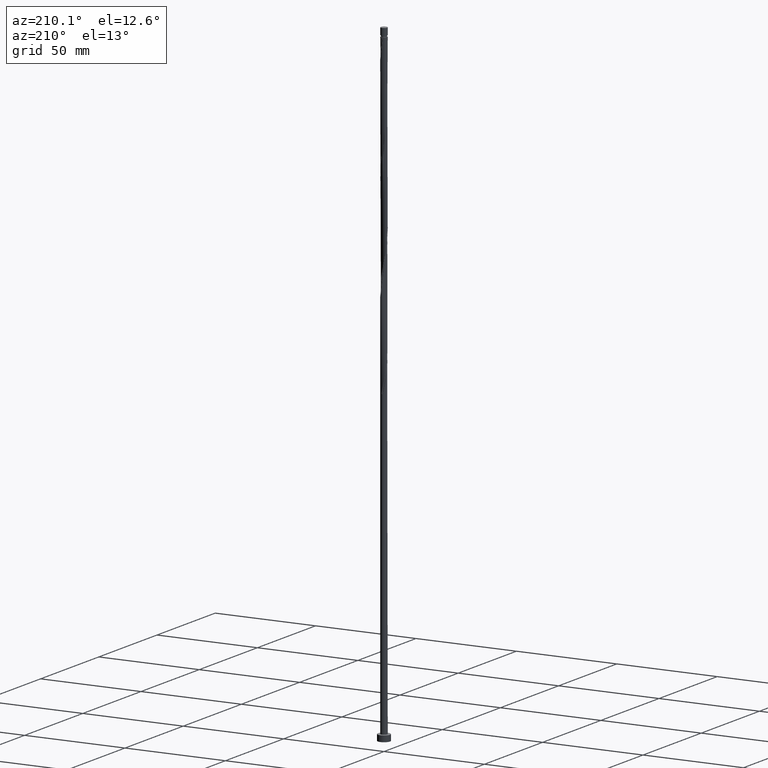
[diagram: clean part render]
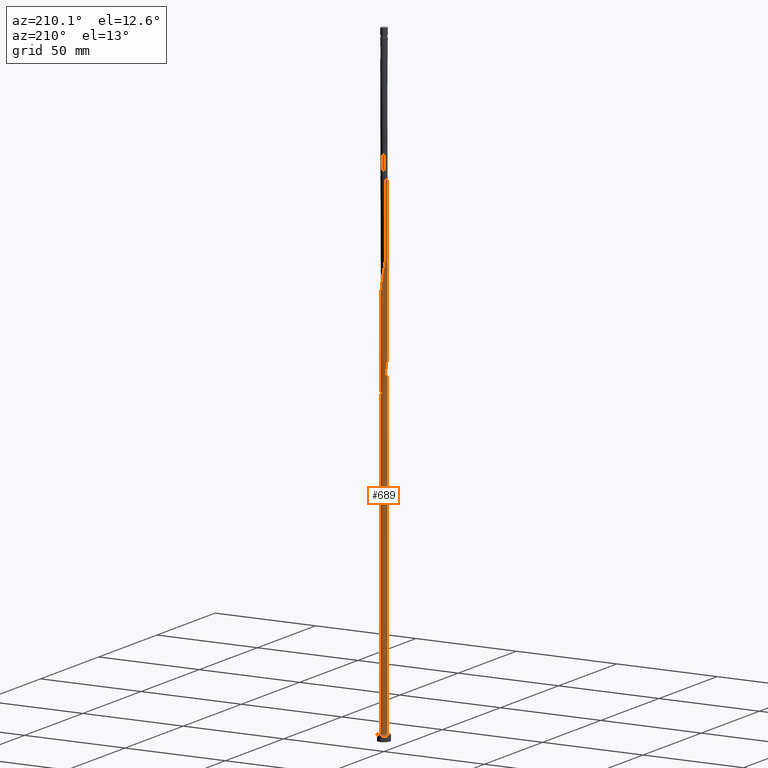
[diagram: same view with one face highlighted and labeled with its STEP entity id]
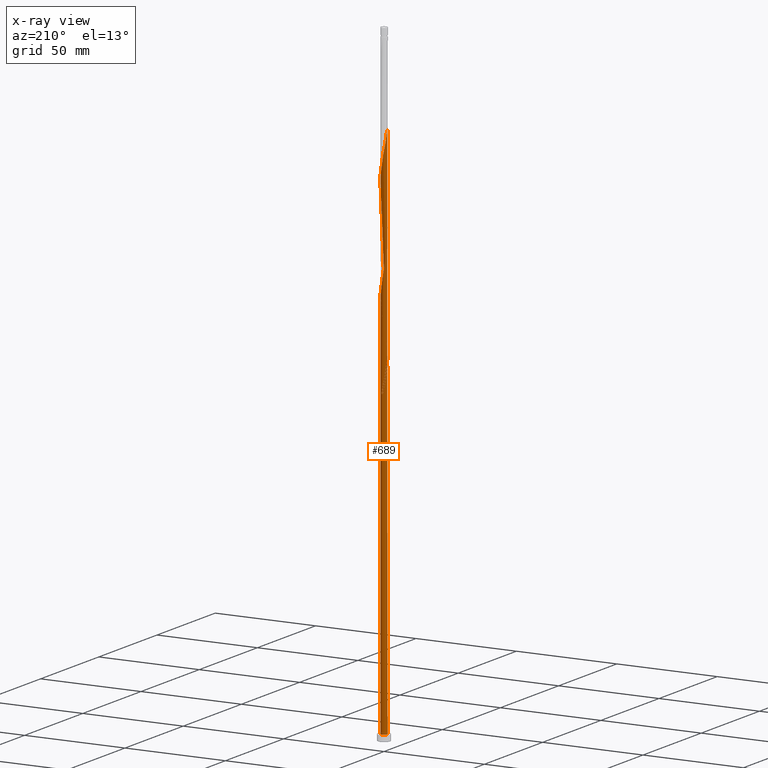
[diagram: x-ray of the same camera — body ghosted, the highlighted face saturated]
A machine part, auxiliary view. The second image highlights one B-rep face of the part: STEP entity #689.
The next image is the same camera in x-ray: the body ghosted, the highlighted face saturated — about 0% of this face is hidden behind the body in this view.
In plain terms, the highlighted cylindrical surface (bore or boss wall) has radius 1.6 mm, axis along (-0, -0, -1).
Its self-contained STEP definition (entity closure, byte-faithful):
#2 = AXIS2_PLACEMENT_3D ( 'NONE', #773, #1340, #92 ) ;
#12 = CARTESIAN_POINT ( 'NONE',  ( -0.4950671496374954850, 1.532125388895208218, 206.8356514521028657 ) ) ;
#21 = CARTESIAN_POINT ( 'NONE',  ( 0.6593259523492639440, -1.457837195491576532, 181.5231514521028657 ) ) ;
#30 = CARTESIAN_POINT ( 'NONE',  ( -1.274572346603212836, -0.9671945684681999555, 170.2731514521028657 ) ) ;
#41 = CARTESIAN_POINT ( 'NONE',  ( 1.424428410914205134, -0.7287000083576508080, 187.1481514521028657 ) ) ;
#50 = CARTESIAN_POINT ( 'NONE',  ( 0.4950671496374952074, -1.532125388895208218, 180.5856514521028657 ) ) ;
#68 = VERTEX_POINT ( 'NONE', #1398 ) ;
#71 = CARTESIAN_POINT ( 'NONE',  ( -0.3934648374044629193, 1.550866023138775418, 157.1481514521028657 ) ) ;
#74 = CARTESIAN_POINT ( 'NONE',  ( 1.532125388895208218, 0.4950671496374951519, 246.2106514521028657 ) ) ;
#84 = CARTESIAN_POINT ( 'NONE',  ( -0.5682054716227037394, -1.506533183161097078, 227.4606514521028657 ) ) ;
#92 = DIRECTION ( 'NONE',  ( -1.000000000000000000, 0.000000000000000000, 0.000000000000000000 ) ) ;
#100 = CARTESIAN_POINT ( 'NONE',  ( -1.274572346603212836, -0.9671945684681999555, 222.7731514521028942 ) ) ;
#118 = DIRECTION ( 'NONE',  ( 0.000000000000000000, -0.000000000000000000, -1.000000000000000000 ) ) ;
#142 = VERTEX_POINT ( 'NONE', #984 ) ;
#144 = CARTESIAN_POINT ( 'NONE',  ( 1.165595691118481492, 1.110804381875367230, 197.4606514521028373 ) ) ;
#146 = CIRCLE ( 'NONE', #1151, 1.600000000000000089 ) ;
#154 = CARTESIAN_POINT ( 'NONE',  ( -0.8891945450925975436, -1.342323638667313412, 173.0856514521028942 ) ) ;
#164 = CARTESIAN_POINT ( 'NONE',  ( -1.532125388895208218, -0.4950671496374952629, 219.9606514521028657 ) ) ;
#169 = VERTEX_POINT ( 'NONE', #855 ) ;
#171 = CARTESIAN_POINT ( 'NONE',  ( -1.599536737110626827, 0.03849969653773879091, 217.1481514521029226 ) ) ;
#177 = CARTESIAN_POINT ( 'NONE',  ( 0.8235847550610325696, -1.383549002087944180, 182.4606514521029226 ) ) ;
#193 =( BOUNDED_CURVE ( )  B_SPLINE_CURVE ( 2, ( #702, #1674, #1267, #1278, #718, #854, #30, #1422, #577, #154, #286, #839, #1119, #1568, #1102, #726, #863, #50, #21, #177, #846, #421, #1533, #961, #41, #586, #828, #454, #1258, #1394, #1287, #319, #1430, #557, #1111, #144, #998, #1694, #695, #991, #1249, #446, #1710, #1407, #1561, #12, #437, #1127, #1701, #983, #1686, #1553, #429, #972, #311, #1414, #171, #1542, #1135, #164, #295, #1634, #100, #1716, #652, #627, #1616, #84, #386, #1184, #246, #788, #1055, #1200, #757, #1746, #1330, #637, #1772, #1468, #510, #1461, #1045, #925, #504, #238, #916, #74, #359, #1065, #898, #1488, #1497, #367, #905, #220, #1756, #212, #1359, #596, #1037, #1623, #1478, #488, #780, #1143, #377, #1350, #496, #461, #1007, #1577, #764, #351, #890 ),
 .UNSPECIFIED., .F., .T. ) 
 B_SPLINE_CURVE_WITH_KNOTS ( ( 3, 2, 2, 2, 2, 2, 2, 2, 2, 2, 2, 2, 2, 2, 2, 2, 2, 2, 2, 2, 2, 2, 2, 2, 2, 2, 2, 2, 2, 2, 2, 2, 2, 2, 2, 2, 2, 2, 2, 2, 2, 2, 2, 2, 2, 2, 2, 2, 2, 2, 2, 2, 2, 2, 2, 2, 2, 3 ),
 ( 0.05453034012992213908, 0.06250000000000000000, 0.07142857142857139685, 0.08035714285714290472, 0.08928571428571430157, 0.09821428571428569843, 0.1071428571428570953, 0.1160714285714286031, 0.1250000000000000000, 0.1339285714285713969, 0.1428571428571429047, 0.1517857142857143016, 0.1607142857142856984, 0.1696428571428570953, 0.1785714285714286031, 0.1875000000000000000, 0.1964285714285713969, 0.2053571428571429047, 0.2142857142857143016, 0.2232142857142856984, 0.2321428571428570953, 0.2410714285714286031, 0.2500000000000000000, 0.2589285714285713969, 0.2678571428571429047, 0.2767857142857143016, 0.2857142857142856984, 0.2946428571428570953, 0.3035714285714286031, 0.3125000000000000000, 0.3214285714285713969, 0.3303571428571429047, 0.3392857142857143016, 0.3482142857142856984, 0.3571428571428570953, 0.3660714285714286031, 0.3750000000000000000, 0.3839285714285713969, 0.3928571428571429047, 0.4017857142857143016, 0.4107142857142856984, 0.4196428571428570953, 0.4285714285714286031, 0.4375000000000000000, 0.4464285714285713969, 0.4553571428571429047, 0.4642857142857143016, 0.4732142857142856984, 0.4821428571428570953, 0.4910714285714286031, 0.5000000000000000000, 0.5089285714285713969, 0.5178571428571427937, 0.5267857142857143016, 0.5357142857142856984, 0.5446428571428572063, 0.5535714285714286031, 0.5545303401299224166 ),
 .UNSPECIFIED. ) 
 CURVE ( )  GEOMETRIC_REPRESENTATION_ITEM ( )  RATIONAL_B_SPLINE_CURVE ( ( 0.9079949616362513742, 0.9039886423361144230, 0.9090909090909813361, 0.9033747362666559866, 0.9090909090909813361, 0.9033747362666559866, 0.9090909090909813361, 0.9033747362666559866, 0.9090909090909813361, 0.9033747362666559866, 0.9090909090909813361, 0.9033747362666559866, 0.9090909090909813361, 0.9033747362666559866, 0.9090909090909813361, 0.9033747362666559866, 0.9090909090909813361, 0.9033747362666559866, 0.9090909090909813361, 0.9033747362666559866, 0.9090909090909813361, 0.9033747362666559866, 0.9090909090909813361, 0.9033747362666559866, 0.9090909090909813361, 0.9033747362666559866, 0.9090909090909813361, 0.9033747362666559866, 0.9090909090909813361, 0.9033747362666559866, 0.9090909090909813361, 0.9033747362666559866, 0.9090909090909813361, 0.9033747362666559866, 0.9090909090909813361, 0.9033747362666559866, 0.9090909090909813361, 0.9033747362666559866, 0.9090909090909813361, 0.9033747362666559866, 0.9090909090909813361, 0.9033747362666559866, 0.9090909090909813361, 0.9033747362666559866, 0.9090909090909813361, 0.9033747362666559866, 0.9090909090909813361, 0.9033747362666559866, 0.9090909090909813361, 0.9033747362666559866, 0.9090909090909813361, 0.9033747362666559866, 0.9090909090909813361, 0.9033747362666559866, 0.9090909090909813361, 0.9033747362666559866, 0.9090909090909813361, 0.9033747362666559866, 0.9090909090909813361, 0.9033747362666559866, 0.9090909090909813361, 0.9033747362666559866, 0.9090909090909813361, 0.9033747362666559866, 0.9090909090909813361, 0.9033747362666559866, 0.9090909090909813361, 0.9033747362666559866, 0.9090909090909813361, 0.9033747362666559866, 0.9090909090909813361, 0.9033747362666559866, 0.9090909090909813361, 0.9033747362666559866, 0.9090909090909813361, 0.9033747362666559866, 0.9090909090909813361, 0.9033747362666559866, 0.9090909090909813361, 0.9033747362666559866, 0.9090909090909813361, 0.9033747362666559866, 0.9090909090909813361, 0.9033747362666559866, 0.9090909090909813361, 0.9033747362666559866, 0.9090909090909813361, 0.9033747362666559866, 0.9090909090909813361, 0.9033747362666559866, 0.9090909090909813361, 0.9033747362666559866, 0.9090909090909813361, 0.9033747362666559866, 0.9090909090909813361, 0.9033747362666559866, 0.9090909090909813361, 0.9033747362666559866, 0.9090909090909813361, 0.9033747362666559866, 0.9090909090909813361, 0.9033747362666559866, 0.9090909090909813361, 0.9033747362666559866, 0.9090909090909813361, 0.9033747362666559866, 0.9090909090909813361, 0.9033747362666559866, 0.9090909090909813361, 0.9033747362666559866, 0.9090909090909813361, 0.9033747362666559866, 0.9090909090909813361, 0.9084770030215227887, 0.9079949616362510412 ) ) 
 REPRESENTATION_ITEM ( '' )  );
#212 = CARTESIAN_POINT ( 'NONE',  ( 0.2187242031862245695, 1.595198863116457533, 255.5856514521029226 ) ) ;
#217 = CARTESIAN_POINT ( 'NONE',  ( -0.2187242031862235980, 1.595198863116455312, 156.2106514521028942 ) ) ;
#220 = CARTESIAN_POINT ( 'NONE',  ( 0.5682054716227041835, 1.506533183161097078, 253.7106514521028657 ) ) ;
#224 = CARTESIAN_POINT ( 'NONE',  ( -0.5682054716227021851, 1.506533183161094858, 158.0856514521028942 ) ) ;
#231 = VECTOR ( 'NONE', #1465, 1000.000000000000000 ) ;
#238 = CARTESIAN_POINT ( 'NONE',  ( 1.603874611104796122, 0.1417248101107463354, 244.3356514521028373 ) ) ;
#246 = CARTESIAN_POINT ( 'NONE',  ( -0.03849969653773888806, -1.599536737110626827, 230.2731514521028657 ) ) ;
#262 = CARTESIAN_POINT ( 'NONE',  ( -1.600000000000000089, 0.000000000000000000, 315.0000000000000000 ) ) ;
#265 = CARTESIAN_POINT ( 'NONE',  ( -1.550866023138777416, 0.3934648374044639740, 162.7731514521028657 ) ) ;
#275 = DIRECTION ( 'NONE',  ( -0.000000000000000000, -0.000000000000000000, -1.000000000000000000 ) ) ;
#277 = CARTESIAN_POINT ( 'NONE',  ( -1.599536737110626827, 0.03849969653773879091, 164.6481514521028657 ) ) ;
#286 = CARTESIAN_POINT ( 'NONE',  ( -0.7287000083576505860, -1.424428410914205134, 174.0231514521028657 ) ) ;
#295 = CARTESIAN_POINT ( 'NONE',  ( -1.457837195491576532, -0.6593259523492639440, 220.8981514521028657 ) ) ;
#311 = CARTESIAN_POINT ( 'NONE',  ( -1.550866023138777416, 0.3934648374044639740, 215.2731514521028657 ) ) ;
#313 =( BOUNDED_CURVE ( )  B_SPLINE_CURVE ( 2, ( #1449, #464, #1011, #347, #1580, #329, #1299, #879, #1612, #1188, #1042, #224, #71, #217, #1173, #1311, #1441 ),
 .UNSPECIFIED., .F., .T. ) 
 B_SPLINE_CURVE_WITH_KNOTS ( ( 3, 2, 2, 2, 2, 2, 2, 2, 3 ),
 ( 0.9295303401299220836, 0.9375000000000000000, 0.9464285714285713969, 0.9553571428571429047, 0.9642857142857143016, 0.9732142857142856984, 0.9821428571428570953, 0.9910714285714286031, 1.000000000000000000 ),
 .UNSPECIFIED. ) 
 CURVE ( )  GEOMETRIC_REPRESENTATION_ITEM ( )  RATIONAL_B_SPLINE_CURVE ( ( 0.9079949616362451570, 0.9039886423361080947, 0.9090909090909750079, 0.9033747362666497693, 0.9090909090909750079, 0.9033747362666497693, 0.9090909090909750079, 0.9033747362666497693, 0.9090909090909750079, 0.9033747362666497693, 0.9090909090909750079, 0.9033747362666497693, 0.9090909090909750079, 0.9033747362666497693, 0.9090909090909750079, 0.9033747362666497693, 0.9090909090909750079 ) ) 
 REPRESENTATION_ITEM ( '' )  );
#318 = EDGE_CURVE ( 'NONE', #459, #750, #1512, .T. ) ;
#319 = CARTESIAN_POINT ( 'NONE',  ( 1.532125388895208218, 0.4950671496374951519, 193.7106514521028373 ) ) ;
#322 = CIRCLE ( 'NONE', #1008, 1.600000000000000089 ) ;
#327 = ORIENTED_EDGE ( 'NONE', *, *, #1138, .T. ) ;
#329 = CARTESIAN_POINT ( 'NONE',  ( -1.383549002087941293, 0.8235847550610319034, 163.7106514521028657 ) ) ;
#347 = CARTESIAN_POINT ( 'NONE',  ( -1.532125388895205997, 0.4950671496374948188, 165.5856514521028657 ) ) ;
#351 = CARTESIAN_POINT ( 'NONE',  ( -1.600000000000002531, 0.01925263546621620164, 269.7482716859717584 ) ) ;
#352 = ORIENTED_EDGE ( 'NONE', *, *, #1336, .F. ) ;
#359 = CARTESIAN_POINT ( 'NONE',  ( 1.457837195491576532, 0.6593259523492639440, 247.1481514521028373 ) ) ;
#367 = CARTESIAN_POINT ( 'NONE',  ( 0.8891945450925979877, 1.342323638667313190, 251.8356514521028942 ) ) ;
#377 = CARTESIAN_POINT ( 'NONE',  ( -1.226564010271340210, 1.027395118105539407, 264.0231514521029226 ) ) ;
#384 = CARTESIAN_POINT ( 'NONE',  ( -0.4950671496374954850, 1.532125388895208218, 154.3356514521028373 ) ) ;
#386 = CARTESIAN_POINT ( 'NONE',  ( -0.3934648374044641406, -1.550866023138777194, 228.3981514521028942 ) ) ;
#392 = CARTESIAN_POINT ( 'NONE',  ( -0.9671945684682000666, 1.274572346603212836, 157.1481514521028942 ) ) ;
#421 = CARTESIAN_POINT ( 'NONE',  ( 1.110804381875367230, -1.165595691118481492, 184.3356514521029226 ) ) ;
#429 = CARTESIAN_POINT ( 'NONE',  ( -1.424428410914205356, 0.7287000083576504750, 213.3981514521028373 ) ) ;
#437 = CARTESIAN_POINT ( 'NONE',  ( -0.6593259523492642771, 1.457837195491576532, 207.7731514521028657 ) ) ;
#446 = CARTESIAN_POINT ( 'NONE',  ( 0.2187242031862245695, 1.595198863116457533, 203.0856514521028942 ) ) ;
#454 = CARTESIAN_POINT ( 'NONE',  ( 1.595198863116457533, -0.2187242031862244585, 189.9606514521029510 ) ) ;
#459 = VERTEX_POINT ( 'NONE', #1594 ) ;
#461 = CARTESIAN_POINT ( 'NONE',  ( -1.506533183161097078, 0.5682054716227036284, 266.8356514521028657 ) ) ;
#464 = CARTESIAN_POINT ( 'NONE',  ( -1.599999999999999645, 0.1608060504414763059, 167.3593974510453108 ) ) ;
#488 = CARTESIAN_POINT ( 'NONE',  ( -0.8235847550610331247, 1.383549002087944180, 261.2106514521029226 ) ) ;
#496 = CARTESIAN_POINT ( 'NONE',  ( -1.424428410914205356, 0.7287000083576504750, 265.8981514521029226 ) ) ;
#504 = CARTESIAN_POINT ( 'NONE',  ( 1.599536737110626827, -0.03849969653773905459, 243.3981514521028373 ) ) ;
#510 = CARTESIAN_POINT ( 'NONE',  ( 1.424428410914205134, -0.7287000083576508080, 239.6481514521029226 ) ) ;
#520 = CARTESIAN_POINT ( 'NONE',  ( -0.8235847550610331247, 1.383549002087944180, 156.2106514521028373 ) ) ;
#538 = DIRECTION ( 'NONE',  ( 1.000000000000000000, 0.000000000000000000, 0.000000000000000000 ) ) ;
#542 = AXIS2_PLACEMENT_3D ( 'NONE', #922, #118, #1493 ) ;
#557 = CARTESIAN_POINT ( 'NONE',  ( 1.383549002087944180, 0.8235847550610325696, 195.5856514521028657 ) ) ;
#577 = CARTESIAN_POINT ( 'NONE',  ( -1.027395118105539629, -1.226564010271340210, 172.1481514521029226 ) ) ;
#586 = CARTESIAN_POINT ( 'NONE',  ( 1.506533183161097078, -0.5682054716227037394, 188.0856514521028657 ) ) ;
#596 = CARTESIAN_POINT ( 'NONE',  ( -0.1417248101107462521, 1.603874611104796122, 257.4606514521028657 ) ) ;
#608 = CARTESIAN_POINT ( 'NONE',  ( 0.000000000000000000, 0.000000000000000000, 3.000000000000000000 ) ) ;
#627 = CARTESIAN_POINT ( 'NONE',  ( -0.8891945450925975436, -1.342323638667313412, 225.5856514521028942 ) ) ;
#637 = CARTESIAN_POINT ( 'NONE',  ( 1.110804381875367230, -1.165595691118481492, 236.8356514521028657 ) ) ;
#652 = CARTESIAN_POINT ( 'NONE',  ( -1.027395118105539629, -1.226564010271340210, 224.6481514521028942 ) ) ;
#655 = EDGE_CURVE ( 'NONE', #1152, #459, #193, .T. ) ;
#659 = CARTESIAN_POINT ( 'NONE',  ( 0.000000000000000000, 0.000000000000000000, 3.000000000000000000 ) ) ;
#669 = CARTESIAN_POINT ( 'NONE',  ( -1.600000000000002531, -1.880647463712196369E-15, 164.8486343741967914 ) ) ;
#689 = ADVANCED_FACE ( 'NONE', ( #1176 ), #1605, .T. ) ;
#695 = CARTESIAN_POINT ( 'NONE',  ( 0.7287000083576508080, 1.424428410914205134, 200.2731514521028942 ) ) ;
#702 = CARTESIAN_POINT ( 'NONE',  ( -1.600000000000002531, -1.880647463712196369E-15, 164.8486343741968199 ) ) ;
#718 = CARTESIAN_POINT ( 'NONE',  ( -1.457837195491576532, -0.6593259523492639440, 168.3981514521028942 ) ) ;
#726 = CARTESIAN_POINT ( 'NONE',  ( 0.1417248101107464464, -1.603874611104796122, 178.7106514521028942 ) ) ;
#750 = VERTEX_POINT ( 'NONE', #1689 ) ;
#757 = CARTESIAN_POINT ( 'NONE',  ( 0.6593259523492639440, -1.457837195491576532, 234.0231514521028657 ) ) ;
#764 = CARTESIAN_POINT ( 'NONE',  ( -1.599536737110626827, 0.03849969653773879091, 269.6481514521028657 ) ) ;
#773 = CARTESIAN_POINT ( 'NONE',  ( 0.000000000000000000, 0.000000000000000000, 315.0000000000000000 ) ) ;
#780 = CARTESIAN_POINT ( 'NONE',  ( -0.9671945684682000666, 1.274572346603212836, 262.1481514521029226 ) ) ;
#788 = CARTESIAN_POINT ( 'NONE',  ( 0.1417248101107464464, -1.603874611104796122, 231.2106514521028373 ) ) ;
#828 = CARTESIAN_POINT ( 'NONE',  ( 1.550866023138777194, -0.3934648374044641961, 189.0231514521028373 ) ) ;
#839 = CARTESIAN_POINT ( 'NONE',  ( -0.5682054716227037394, -1.506533183161097078, 174.9606514521029226 ) ) ;
#846 = CARTESIAN_POINT ( 'NONE',  ( 0.9671945684681999555, -1.274572346603212836, 183.3981514521028657 ) ) ;
#854 = CARTESIAN_POINT ( 'NONE',  ( -1.383549002087944180, -0.8235847550610327916, 169.3356514521028942 ) ) ;
#855 = CARTESIAN_POINT ( 'NONE',  ( 1.600000000000000089, 0.000000000000000000, 3.000000000000000000 ) ) ;
#863 = CARTESIAN_POINT ( 'NONE',  ( 0.3183959798741208824, -1.568000000000002059, 179.6481514521028089 ) ) ;
#879 = CARTESIAN_POINT ( 'NONE',  ( -1.165595691118479049, 1.110804381875366120, 161.8356514521028942 ) ) ;
#890 = CARTESIAN_POINT ( 'NONE',  ( -1.600000000000002753, 5.858366107198707680E-16, 269.8486343741968199 ) ) ;
#895 = LINE ( 'NONE', #1589, #231 ) ;
#898 = CARTESIAN_POINT ( 'NONE',  ( 1.274572346603213058, 0.9671945684681999555, 249.0231514521028657 ) ) ;
#905 = CARTESIAN_POINT ( 'NONE',  ( 0.7287000083576508080, 1.424428410914205134, 252.7731514521029510 ) ) ;
#912 = CIRCLE ( 'NONE', #542, 1.600000000000000089 ) ;
#916 = CARTESIAN_POINT ( 'NONE',  ( 1.568000000000002059, 0.3183959798741206604, 245.2731514521028657 ) ) ;
#922 = CARTESIAN_POINT ( 'NONE',  ( 0.000000000000000000, 0.000000000000000000, 153.3981514521028942 ) ) ;
#925 = CARTESIAN_POINT ( 'NONE',  ( 1.595198863116457533, -0.2187242031862244585, 242.4606514521028657 ) ) ;
#933 = CARTESIAN_POINT ( 'NONE',  ( -1.342323638667313412, 0.8891945450925975436, 159.9606514521028657 ) ) ;
#954 = CARTESIAN_POINT ( 'NONE',  ( 0.3183959798741211045, 1.567999999999999838, 153.3981514521028657 ) ) ;
#955 = ORIENTED_EDGE ( 'NONE', *, *, #1588, .F. ) ;
#961 = CARTESIAN_POINT ( 'NONE',  ( 1.342323638667313412, -0.8891945450925977656, 186.2106514521028657 ) ) ;
#972 = CARTESIAN_POINT ( 'NONE',  ( -1.506533183161097078, 0.5682054716227036284, 214.3356514521028942 ) ) ;
#983 = CARTESIAN_POINT ( 'NONE',  ( -1.110804381875367453, 1.165595691118481492, 210.5856514521028657 ) ) ;
#984 = CARTESIAN_POINT ( 'NONE',  ( -1.600000000000000089, 0.000000000000000000, 3.000000000000000000 ) ) ;
#991 = CARTESIAN_POINT ( 'NONE',  ( 0.5682054716227041835, 1.506533183161097078, 201.2106514521028657 ) ) ;
#998 = CARTESIAN_POINT ( 'NONE',  ( 1.027395118105539629, 1.226564010271339988, 198.3981514521028089 ) ) ;
#1007 = CARTESIAN_POINT ( 'NONE',  ( -1.550866023138777416, 0.3934648374044639740, 267.7731514521029794 ) ) ;
#1008 = AXIS2_PLACEMENT_3D ( 'NONE', #608, #1155, #1458 ) ;
#1011 = CARTESIAN_POINT ( 'NONE',  ( -1.567999999999999616, 0.3183959798741208269, 166.5231514521028657 ) ) ;
#1015 = EDGE_LOOP ( 'NONE', ( #1117, #1683, #1757, #327, #1652, #955, #352, #1141, #1085 ) ) ;
#1037 = CARTESIAN_POINT ( 'NONE',  ( -0.3183959798741206604, 1.568000000000002059, 258.3981514521028657 ) ) ;
#1042 = CARTESIAN_POINT ( 'NONE',  ( -0.7287000083576490317, 1.424428410914202914, 159.0231514521029226 ) ) ;
#1045 = CARTESIAN_POINT ( 'NONE',  ( 1.550866023138777194, -0.3934648374044641961, 241.5231514521028657 ) ) ;
#1055 = CARTESIAN_POINT ( 'NONE',  ( 0.3183959798741208824, -1.568000000000002059, 232.1481514521028657 ) ) ;
#1065 = CARTESIAN_POINT ( 'NONE',  ( 1.383549002087944180, 0.8235847550610325696, 248.0856514521028942 ) ) ;
#1084 = CARTESIAN_POINT ( 'NONE',  ( -0.6593259523492642771, 1.457837195491576532, 155.2731514521028942 ) ) ;
#1085 = ORIENTED_EDGE ( 'NONE', *, *, #1401, .F. ) ;
#1087 = EDGE_CURVE ( 'NONE', #68, #1241, #912, .T. ) ;
#1095 = CARTESIAN_POINT ( 'NONE',  ( -1.110804381875367453, 1.165595691118481492, 158.0856514521028373 ) ) ;
#1102 = CARTESIAN_POINT ( 'NONE',  ( -0.03849969653773888806, -1.599536737110626827, 177.7731514521028657 ) ) ;
#1104 = CARTESIAN_POINT ( 'NONE',  ( -1.424428410914205356, 0.7287000083576504750, 160.8981514521028373 ) ) ;
#1111 = CARTESIAN_POINT ( 'NONE',  ( 1.274572346603213058, 0.9671945684681999555, 196.5231514521028942 ) ) ;
#1117 = ORIENTED_EDGE ( 'NONE', *, *, #318, .F. ) ;
#1119 = CARTESIAN_POINT ( 'NONE',  ( -0.3934648374044641406, -1.550866023138777194, 175.8981514521028657 ) ) ;
#1127 = CARTESIAN_POINT ( 'NONE',  ( -0.8235847550610331247, 1.383549002087944180, 208.7106514521028657 ) ) ;
#1135 = CARTESIAN_POINT ( 'NONE',  ( -1.568000000000002059, -0.3183959798741208824, 219.0231514521029510 ) ) ;
#1138 = EDGE_CURVE ( 'NONE', #142, #169, #146, .T. ) ;
#1141 = ORIENTED_EDGE ( 'NONE', *, *, #1087, .T. ) ;
#1143 = CARTESIAN_POINT ( 'NONE',  ( -1.110804381875367453, 1.165595691118481492, 263.0856514521029226 ) ) ;
#1151 = AXIS2_PLACEMENT_3D ( 'NONE', #659, #1347, #538 ) ;
#1152 = VERTEX_POINT ( 'NONE', #669 ) ;
#1155 = DIRECTION ( 'NONE',  ( 0.000000000000000000, 0.000000000000000000, 1.000000000000000000 ) ) ;
#1172 =( BOUNDED_CURVE ( )  B_SPLINE_CURVE ( 2, ( #1368, #384, #1084, #520, #392, #1095, #1240, #933, #1104, #1516, #265, #1800, #277, #1525, #1664 ),
 .UNSPECIFIED., .F., .T. ) 
 B_SPLINE_CURVE_WITH_KNOTS ( ( 3, 2, 2, 2, 2, 2, 2, 3 ),
 ( 0.000000000000000000, 0.008928571428571396851, 0.01785714285714290472, 0.02678571428571430157, 0.03571428571428569843, 0.04464285714285709528, 0.05357142857142860315, 0.05453034012992214602 ),
 .UNSPECIFIED. ) 
 CURVE ( )  GEOMETRIC_REPRESENTATION_ITEM ( )  RATIONAL_B_SPLINE_CURVE ( ( 0.9090909090909813361, 0.9033747362666559866, 0.9090909090909813361, 0.9033747362666559866, 0.9090909090909813361, 0.9033747362666559866, 0.9090909090909813361, 0.9033747362666559866, 0.9090909090909813361, 0.9033747362666559866, 0.9090909090909813361, 0.9033747362666559866, 0.9090909090909813361, 0.9084770030215230108, 0.9079949616362513742 ) ) 
 REPRESENTATION_ITEM ( '' )  );
#1173 = CARTESIAN_POINT ( 'NONE',  ( -0.03849969653773843703, 1.599536737110624163, 155.2731514521029226 ) ) ;
#1176 = FACE_OUTER_BOUND ( 'NONE', #1015, .T. ) ;
#1184 = CARTESIAN_POINT ( 'NONE',  ( -0.2187242031862242919, -1.595198863116457755, 229.3356514521028373 ) ) ;
#1188 = CARTESIAN_POINT ( 'NONE',  ( -0.8891945450925957672, 1.342323638667311636, 159.9606514521028373 ) ) ;
#1200 = CARTESIAN_POINT ( 'NONE',  ( 0.4950671496374952074, -1.532125388895208218, 233.0856514521028942 ) ) ;
#1240 = CARTESIAN_POINT ( 'NONE',  ( -1.226564010271340210, 1.027395118105539407, 159.0231514521028657 ) ) ;
#1241 = VERTEX_POINT ( 'NONE', #954 ) ;
#1249 = CARTESIAN_POINT ( 'NONE',  ( 0.3934648374044642516, 1.550866023138777194, 202.1481514521028657 ) ) ;
#1258 = CARTESIAN_POINT ( 'NONE',  ( 1.599536737110626827, -0.03849969653773905459, 190.8981514521029226 ) ) ;
#1267 = CARTESIAN_POINT ( 'NONE',  ( -1.568000000000002059, -0.3183959798741208824, 166.5231514521028942 ) ) ;
#1278 = CARTESIAN_POINT ( 'NONE',  ( -1.532125388895208218, -0.4950671496374952629, 167.4606514521028657 ) ) ;
#1287 = CARTESIAN_POINT ( 'NONE',  ( 1.568000000000002059, 0.3183959798741206604, 192.7731514521028657 ) ) ;
#1299 = CARTESIAN_POINT ( 'NONE',  ( -1.274572346603210171, 0.9671945684681989563, 162.7731514521028942 ) ) ;
#1311 = CARTESIAN_POINT ( 'NONE',  ( 0.1417248101107466685, 1.603874611104793235, 154.3356514521028657 ) ) ;
#1330 = CARTESIAN_POINT ( 'NONE',  ( 0.9671945684681999555, -1.274572346603212836, 235.8981514521028942 ) ) ;
#1336 = EDGE_CURVE ( 'NONE', #68, #1152, #1172, .T. ) ;
#1340 = DIRECTION ( 'NONE',  ( -0.000000000000000000, -0.000000000000000000, -1.000000000000000000 ) ) ;
#1347 = DIRECTION ( 'NONE',  ( 0.000000000000000000, 0.000000000000000000, 1.000000000000000000 ) ) ;
#1350 = CARTESIAN_POINT ( 'NONE',  ( -1.342323638667313412, 0.8891945450925975436, 264.9606514521028657 ) ) ;
#1359 = CARTESIAN_POINT ( 'NONE',  ( 0.03849969653773915174, 1.599536737110626827, 256.5231514521028657 ) ) ;
#1368 = CARTESIAN_POINT ( 'NONE',  ( -0.3183959798741205494, 1.568000000000002059, 153.3981514521028373 ) ) ;
#1394 = CARTESIAN_POINT ( 'NONE',  ( 1.603874611104796122, 0.1417248101107463354, 191.8356514521028373 ) ) ;
#1398 = CARTESIAN_POINT ( 'NONE',  ( -0.3183959798741205494, 1.568000000000002059, 153.3981514521028657 ) ) ;
#1401 = EDGE_CURVE ( 'NONE', #750, #1241, #313, .T. ) ;
#1407 = CARTESIAN_POINT ( 'NONE',  ( -0.1417248101107462521, 1.603874611104796122, 204.9606514521028373 ) ) ;
#1414 = CARTESIAN_POINT ( 'NONE',  ( -1.595198863116457533, 0.2187242031862242087, 216.2106514521028942 ) ) ;
#1422 = CARTESIAN_POINT ( 'NONE',  ( -1.165595691118481492, -1.110804381875367230, 171.2106514521028373 ) ) ;
#1425 = VECTOR ( 'NONE', #275, 1000.000000000000000 ) ;
#1430 = CARTESIAN_POINT ( 'NONE',  ( 1.457837195491576532, 0.6593259523492639440, 194.6481514521028657 ) ) ;
#1441 = CARTESIAN_POINT ( 'NONE',  ( 0.3183959798741211600, 1.567999999999999616, 153.3981514521028373 ) ) ;
#1449 = CARTESIAN_POINT ( 'NONE',  ( -1.600000000000000089, -2.175431490762337487E-15, 168.1976685300089684 ) ) ;
#1458 = DIRECTION ( 'NONE',  ( 1.000000000000000000, 0.000000000000000000, 0.000000000000000000 ) ) ;
#1461 = CARTESIAN_POINT ( 'NONE',  ( 1.506533183161097078, -0.5682054716227037394, 240.5856514521028657 ) ) ;
#1465 = DIRECTION ( 'NONE',  ( -0.000000000000000000, -0.000000000000000000, -1.000000000000000000 ) ) ;
#1468 = CARTESIAN_POINT ( 'NONE',  ( 1.342323638667313412, -0.8891945450925977656, 238.7106514521028373 ) ) ;
#1478 = CARTESIAN_POINT ( 'NONE',  ( -0.6593259523492642771, 1.457837195491576532, 260.2731514521028657 ) ) ;
#1488 = CARTESIAN_POINT ( 'NONE',  ( 1.165595691118481492, 1.110804381875367230, 249.9606514521028657 ) ) ;
#1493 = DIRECTION ( 'NONE',  ( -1.000000000000000000, 0.000000000000000000, 0.000000000000000000 ) ) ;
#1497 = CARTESIAN_POINT ( 'NONE',  ( 1.027395118105539629, 1.226564010271339988, 250.8981514521028657 ) ) ;
#1512 = LINE ( 'NONE', #262, #1425 ) ;
#1516 = CARTESIAN_POINT ( 'NONE',  ( -1.506533183161097078, 0.5682054716227036284, 161.8356514521028657 ) ) ;
#1525 = CARTESIAN_POINT ( 'NONE',  ( -1.600000000000002531, 0.01925263546622176664, 164.7482716859717300 ) ) ;
#1533 = CARTESIAN_POINT ( 'NONE',  ( 1.226564010271339988, -1.027395118105539629, 185.2731514521029226 ) ) ;
#1542 = CARTESIAN_POINT ( 'NONE',  ( -1.603874611104796122, -0.1417248101107465574, 218.0856514521028942 ) ) ;
#1553 = CARTESIAN_POINT ( 'NONE',  ( -1.342323638667313412, 0.8891945450925975436, 212.4606514521028942 ) ) ;
#1555 = EDGE_CURVE ( 'NONE', #169, #142, #322, .T. ) ;
#1561 = CARTESIAN_POINT ( 'NONE',  ( -0.3183959798741206604, 1.568000000000002059, 205.8981514521029226 ) ) ;
#1568 = CARTESIAN_POINT ( 'NONE',  ( -0.2187242031862242919, -1.595198863116457755, 176.8356514521028942 ) ) ;
#1577 = CARTESIAN_POINT ( 'NONE',  ( -1.595198863116457533, 0.2187242031862242087, 268.7106514521028657 ) ) ;
#1580 = CARTESIAN_POINT ( 'NONE',  ( -1.457837195491573867, 0.6593259523492636109, 164.6481514521028657 ) ) ;
#1588 = EDGE_CURVE ( 'NONE', #1152, #142, #895, .T. ) ;
#1589 = CARTESIAN_POINT ( 'NONE',  ( -1.600000000000000089, 0.000000000000000000, 315.0000000000000000 ) ) ;
#1594 = CARTESIAN_POINT ( 'NONE',  ( -1.600000000000002531, 5.858366107198707680E-16, 269.8486343741968199 ) ) ;
#1605 = CYLINDRICAL_SURFACE ( 'NONE', #2, 1.600000000000000089 ) ;
#1612 = CARTESIAN_POINT ( 'NONE',  ( -1.027395118105537630, 1.226564010271339100, 160.8981514521028657 ) ) ;
#1616 = CARTESIAN_POINT ( 'NONE',  ( -0.7287000083576505860, -1.424428410914205134, 226.5231514521028942 ) ) ;
#1623 = CARTESIAN_POINT ( 'NONE',  ( -0.4950671496374954850, 1.532125388895208218, 259.3356514521028657 ) ) ;
#1634 = CARTESIAN_POINT ( 'NONE',  ( -1.383549002087944180, -0.8235847550610327916, 221.8356514521028942 ) ) ;
#1652 = ORIENTED_EDGE ( 'NONE', *, *, #1555, .T. ) ;
#1664 = CARTESIAN_POINT ( 'NONE',  ( -1.600000000000002531, -1.880647463712196369E-15, 164.8486343741968199 ) ) ;
#1674 = CARTESIAN_POINT ( 'NONE',  ( -1.600000000000002309, -0.1608060504414772496, 165.6869054531604490 ) ) ;
#1683 = ORIENTED_EDGE ( 'NONE', *, *, #655, .F. ) ;
#1686 = CARTESIAN_POINT ( 'NONE',  ( -1.226564010271340210, 1.027395118105539407, 211.5231514521028657 ) ) ;
#1689 = CARTESIAN_POINT ( 'NONE',  ( -1.600000000000000089, -2.175431490762337487E-15, 168.1976685300089684 ) ) ;
#1694 = CARTESIAN_POINT ( 'NONE',  ( 0.8891945450925979877, 1.342323638667313190, 199.3356514521028657 ) ) ;
#1701 = CARTESIAN_POINT ( 'NONE',  ( -0.9671945684682000666, 1.274572346603212836, 209.6481514521028942 ) ) ;
#1710 = CARTESIAN_POINT ( 'NONE',  ( 0.03849969653773915174, 1.599536737110626827, 204.0231514521028657 ) ) ;
#1716 = CARTESIAN_POINT ( 'NONE',  ( -1.165595691118481492, -1.110804381875367230, 223.7106514521029226 ) ) ;
#1746 = CARTESIAN_POINT ( 'NONE',  ( 0.8235847550610325696, -1.383549002087944180, 234.9606514521028373 ) ) ;
#1756 = CARTESIAN_POINT ( 'NONE',  ( 0.3934648374044642516, 1.550866023138777194, 254.6481514521028373 ) ) ;
#1757 = ORIENTED_EDGE ( 'NONE', *, *, #1588, .T. ) ;
#1772 = CARTESIAN_POINT ( 'NONE',  ( 1.226564010271339988, -1.027395118105539629, 237.7731514521029510 ) ) ;
#1800 = CARTESIAN_POINT ( 'NONE',  ( -1.595198863116457533, 0.2187242031862242087, 163.7106514521028657 ) ) ;